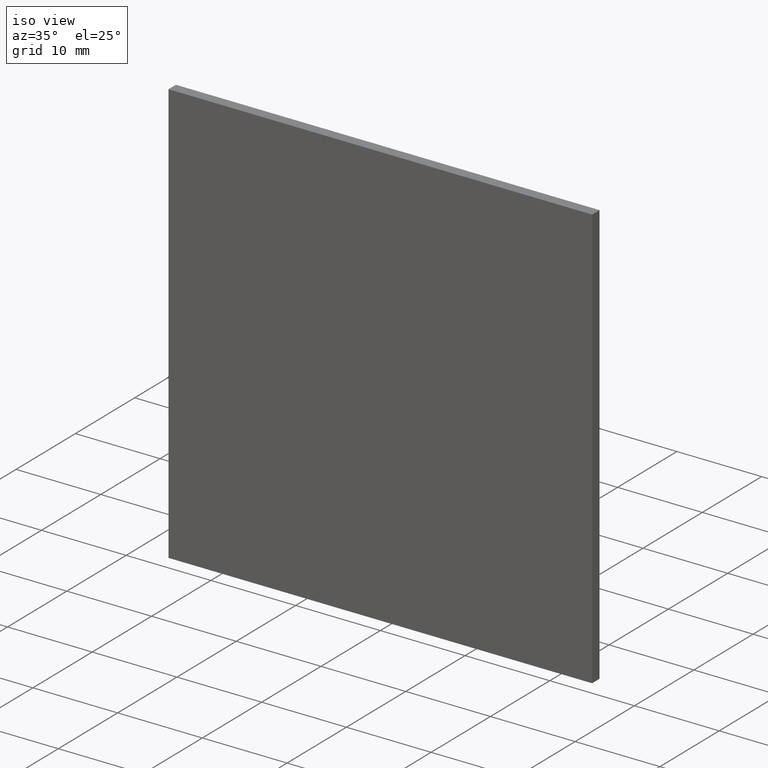
[diagram: clean part render]
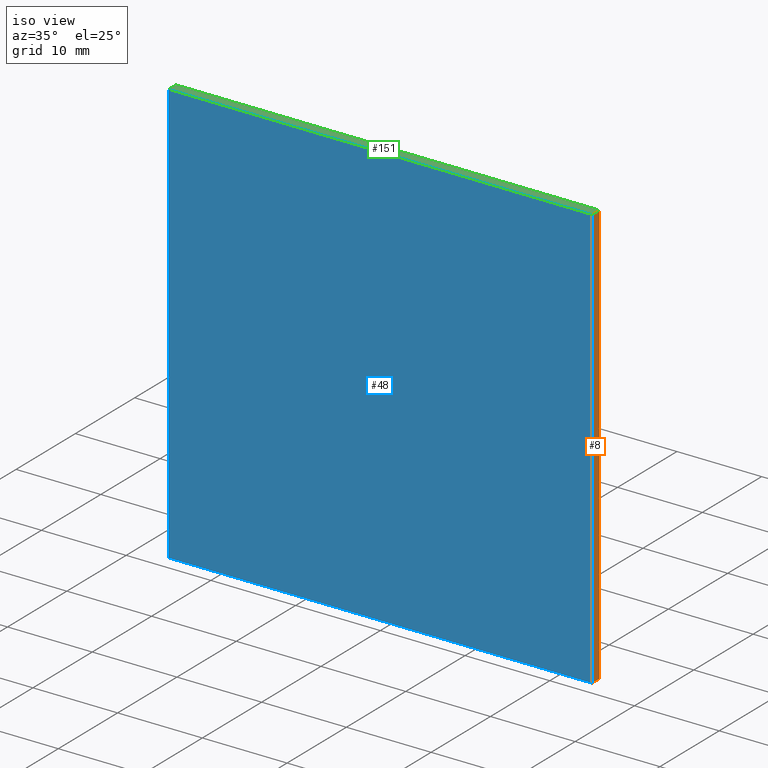
[diagram: same view with three faces highlighted in distinct colors, each labeled with its STEP entity id]
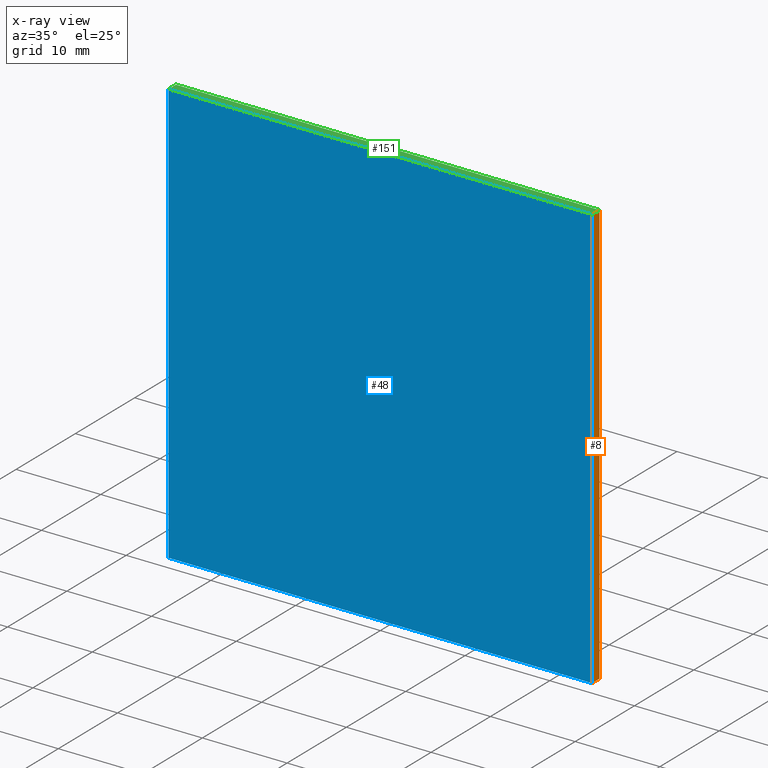
[diagram: x-ray of the same camera — body ghosted, the three highlighted faces saturated]
A machine part, iso view with three faces highlighted in distinct colors.
The next image is the same camera in x-ray (body ghosted, the three faces saturated) — at least one of them is partly hidden behind the body in this view.
Their STEP definitions:

[orange] entity #8 — the highlighted planar face has unit normal (-1, 0, 0).
#2 = VECTOR ( 'NONE', #171, 1000.000000000000000 ) ;
#4 = LINE ( 'NONE', #67, #116 ) ;
#8 = ADVANCED_FACE ( 'NONE', ( #71 ), #172, .F. ) ;
#21 = CARTESIAN_POINT ( 'NONE',  ( 25.00000000000000000, 1.250000000000000000, 25.00000000000000000 ) ) ;
#27 = CARTESIAN_POINT ( 'NONE',  ( 25.00000000000000000, 0.0000000000000000000, -25.00000000000000000 ) ) ;
#32 = DIRECTION ( 'NONE',  ( -0.0000000000000000000, -1.000000000000000000, -0.0000000000000000000 ) ) ;
#34 = LINE ( 'NONE', #173, #47 ) ;
#36 = DIRECTION ( 'NONE',  ( 0.0000000000000000000, 0.0000000000000000000, 1.000000000000000000 ) ) ;
#40 = LINE ( 'NONE', #170, #2 ) ;
#41 = EDGE_LOOP ( 'NONE', ( #156, #73, #147, #60 ) ) ;
#42 = VERTEX_POINT ( 'NONE', #137 ) ;
#43 = LINE ( 'NONE', #111, #77 ) ;
#45 = EDGE_CURVE ( 'NONE', #42, #98, #40, .T. ) ;
#47 = VECTOR ( 'NONE', #54, 1000.000000000000000 ) ;
#54 = DIRECTION ( 'NONE',  ( 0.0000000000000000000, 0.0000000000000000000, -1.000000000000000000 ) ) ;
#60 = ORIENTED_EDGE ( 'NONE', *, *, #186, .T. ) ;
#67 = CARTESIAN_POINT ( 'NONE',  ( 25.00000000000000000, 1.250000000000000000, 25.00000000000000000 ) ) ;
#71 = FACE_OUTER_BOUND ( 'NONE', #41, .T. ) ;
#73 = ORIENTED_EDGE ( 'NONE', *, *, #189, .F. ) ;
#77 = VECTOR ( 'NONE', #32, 1000.000000000000000 ) ;
#89 = DIRECTION ( 'NONE',  ( -0.0000000000000000000, -1.000000000000000000, -0.0000000000000000000 ) ) ;
#95 = EDGE_CURVE ( 'NONE', #108, #135, #34, .T. ) ;
#98 = VERTEX_POINT ( 'NONE', #27 ) ;
#108 = VERTEX_POINT ( 'NONE', #21 ) ;
#111 = CARTESIAN_POINT ( 'NONE',  ( 25.00000000000000000, 1.250000000000000000, -25.00000000000000000 ) ) ;
#116 = VECTOR ( 'NONE', #89, 1000.000000000000000 ) ;
#135 = VERTEX_POINT ( 'NONE', #174 ) ;
#137 = CARTESIAN_POINT ( 'NONE',  ( 25.00000000000000000, 0.0000000000000000000, 25.00000000000000000 ) ) ;
#138 = AXIS2_PLACEMENT_3D ( 'NONE', #145, #199, #36 ) ;
#145 = CARTESIAN_POINT ( 'NONE',  ( 25.00000000000000000, 1.250000000000000000, 25.00000000000000000 ) ) ;
#147 = ORIENTED_EDGE ( 'NONE', *, *, #95, .F. ) ;
#156 = ORIENTED_EDGE ( 'NONE', *, *, #45, .T. ) ;
#170 = CARTESIAN_POINT ( 'NONE',  ( 25.00000000000000000, 0.0000000000000000000, 25.00000000000000000 ) ) ;
#171 = DIRECTION ( 'NONE',  ( 0.0000000000000000000, 0.0000000000000000000, -1.000000000000000000 ) ) ;
#172 = PLANE ( 'NONE',  #138 ) ;
#173 = CARTESIAN_POINT ( 'NONE',  ( 25.00000000000000000, 1.250000000000000000, 25.00000000000000000 ) ) ;
#174 = CARTESIAN_POINT ( 'NONE',  ( 25.00000000000000000, 1.250000000000000000, -25.00000000000000000 ) ) ;
#186 = EDGE_CURVE ( 'NONE', #108, #42, #4, .T. ) ;
#189 = EDGE_CURVE ( 'NONE', #135, #98, #43, .T. ) ;
#199 = DIRECTION ( 'NONE',  ( -1.000000000000000000, 0.0000000000000000000, 0.0000000000000000000 ) ) ;

[blue] entity #48 — the highlighted planar face has unit normal (0, -1, 0).
#2 = VECTOR ( 'NONE', #171, 1000.000000000000000 ) ;
#3 = VECTOR ( 'NONE', #92, 1000.000000000000000 ) ;
#5 = EDGE_CURVE ( 'NONE', #188, #42, #57, .T. ) ;
#16 = EDGE_CURVE ( 'NONE', #163, #188, #79, .T. ) ;
#18 = CARTESIAN_POINT ( 'NONE',  ( 0.0000000000000000000, 0.0000000000000000000, 0.0000000000000000000 ) ) ;
#27 = CARTESIAN_POINT ( 'NONE',  ( 25.00000000000000000, 0.0000000000000000000, -25.00000000000000000 ) ) ;
#30 = CARTESIAN_POINT ( 'NONE',  ( -25.00000000000000000, 0.0000000000000000000, 25.00000000000000000 ) ) ;
#40 = LINE ( 'NONE', #170, #2 ) ;
#42 = VERTEX_POINT ( 'NONE', #137 ) ;
#45 = EDGE_CURVE ( 'NONE', #42, #98, #40, .T. ) ;
#46 = EDGE_LOOP ( 'NONE', ( #142, #200, #115, #117 ) ) ;
#48 = ADVANCED_FACE ( 'NONE', ( #110 ), #139, .T. ) ;
#52 = EDGE_CURVE ( 'NONE', #98, #163, #82, .T. ) ;
#57 = LINE ( 'NONE', #143, #3 ) ;
#68 = CARTESIAN_POINT ( 'NONE',  ( -25.00000000000000000, 0.0000000000000000000, 25.00000000000000000 ) ) ;
#79 = LINE ( 'NONE', #68, #160 ) ;
#82 = LINE ( 'NONE', #102, #190 ) ;
#85 = DIRECTION ( 'NONE',  ( 0.0000000000000000000, -1.000000000000000000, 0.0000000000000000000 ) ) ;
#87 = DIRECTION ( 'NONE',  ( -0.0000000000000000000, -0.0000000000000000000, 1.000000000000000000 ) ) ;
#92 = DIRECTION ( 'NONE',  ( 1.000000000000000000, 0.0000000000000000000, 0.0000000000000000000 ) ) ;
#98 = VERTEX_POINT ( 'NONE', #27 ) ;
#102 = CARTESIAN_POINT ( 'NONE',  ( -25.00000000000000000, 0.0000000000000000000, -25.00000000000000000 ) ) ;
#110 = FACE_OUTER_BOUND ( 'NONE', #46, .T. ) ;
#113 = AXIS2_PLACEMENT_3D ( 'NONE', #18, #85, #161 ) ;
#115 = ORIENTED_EDGE ( 'NONE', *, *, #16, .F. ) ;
#117 = ORIENTED_EDGE ( 'NONE', *, *, #52, .F. ) ;
#120 = DIRECTION ( 'NONE',  ( -1.000000000000000000, -0.0000000000000000000, -0.0000000000000000000 ) ) ;
#121 = CARTESIAN_POINT ( 'NONE',  ( -25.00000000000000000, 0.0000000000000000000, -25.00000000000000000 ) ) ;
#137 = CARTESIAN_POINT ( 'NONE',  ( 25.00000000000000000, 0.0000000000000000000, 25.00000000000000000 ) ) ;
#139 = PLANE ( 'NONE',  #113 ) ;
#142 = ORIENTED_EDGE ( 'NONE', *, *, #45, .F. ) ;
#143 = CARTESIAN_POINT ( 'NONE',  ( -25.00000000000000000, 0.0000000000000000000, 25.00000000000000000 ) ) ;
#160 = VECTOR ( 'NONE', #87, 1000.000000000000000 ) ;
#161 = DIRECTION ( 'NONE',  ( 0.0000000000000000000, -0.0000000000000000000, -1.000000000000000000 ) ) ;
#163 = VERTEX_POINT ( 'NONE', #121 ) ;
#170 = CARTESIAN_POINT ( 'NONE',  ( 25.00000000000000000, 0.0000000000000000000, 25.00000000000000000 ) ) ;
#171 = DIRECTION ( 'NONE',  ( 0.0000000000000000000, 0.0000000000000000000, -1.000000000000000000 ) ) ;
#188 = VERTEX_POINT ( 'NONE', #30 ) ;
#190 = VECTOR ( 'NONE', #120, 1000.000000000000000 ) ;
#200 = ORIENTED_EDGE ( 'NONE', *, *, #5, .F. ) ;

[green] entity #151 — the highlighted planar face has unit normal (0, 0, -1).
#3 = VECTOR ( 'NONE', #92, 1000.000000000000000 ) ;
#4 = LINE ( 'NONE', #67, #116 ) ;
#5 = EDGE_CURVE ( 'NONE', #188, #42, #57, .T. ) ;
#13 = EDGE_LOOP ( 'NONE', ( #152, #66, #130, #122 ) ) ;
#14 = VERTEX_POINT ( 'NONE', #107 ) ;
#17 = LINE ( 'NONE', #201, #136 ) ;
#21 = CARTESIAN_POINT ( 'NONE',  ( 25.00000000000000000, 1.250000000000000000, 25.00000000000000000 ) ) ;
#24 = VECTOR ( 'NONE', #154, 1000.000000000000000 ) ;
#25 = FACE_OUTER_BOUND ( 'NONE', #13, .T. ) ;
#29 = EDGE_CURVE ( 'NONE', #14, #108, #182, .T. ) ;
#30 = CARTESIAN_POINT ( 'NONE',  ( -25.00000000000000000, 0.0000000000000000000, 25.00000000000000000 ) ) ;
#42 = VERTEX_POINT ( 'NONE', #137 ) ;
#53 = DIRECTION ( 'NONE',  ( -0.0000000000000000000, -1.000000000000000000, -0.0000000000000000000 ) ) ;
#56 = PLANE ( 'NONE',  #144 ) ;
#57 = LINE ( 'NONE', #143, #3 ) ;
#66 = ORIENTED_EDGE ( 'NONE', *, *, #186, .F. ) ;
#67 = CARTESIAN_POINT ( 'NONE',  ( 25.00000000000000000, 1.250000000000000000, 25.00000000000000000 ) ) ;
#89 = DIRECTION ( 'NONE',  ( -0.0000000000000000000, -1.000000000000000000, -0.0000000000000000000 ) ) ;
#92 = DIRECTION ( 'NONE',  ( 1.000000000000000000, 0.0000000000000000000, 0.0000000000000000000 ) ) ;
#103 = DIRECTION ( 'NONE',  ( -1.000000000000000000, 0.0000000000000000000, -0.0000000000000000000 ) ) ;
#107 = CARTESIAN_POINT ( 'NONE',  ( -25.00000000000000000, 1.250000000000000000, 25.00000000000000000 ) ) ;
#108 = VERTEX_POINT ( 'NONE', #21 ) ;
#109 = DIRECTION ( 'NONE',  ( 0.0000000000000000000, 0.0000000000000000000, -1.000000000000000000 ) ) ;
#116 = VECTOR ( 'NONE', #89, 1000.000000000000000 ) ;
#118 = CARTESIAN_POINT ( 'NONE',  ( -25.00000000000000000, 1.250000000000000000, 25.00000000000000000 ) ) ;
#122 = ORIENTED_EDGE ( 'NONE', *, *, #197, .T. ) ;
#130 = ORIENTED_EDGE ( 'NONE', *, *, #29, .F. ) ;
#136 = VECTOR ( 'NONE', #53, 1000.000000000000000 ) ;
#137 = CARTESIAN_POINT ( 'NONE',  ( 25.00000000000000000, 0.0000000000000000000, 25.00000000000000000 ) ) ;
#143 = CARTESIAN_POINT ( 'NONE',  ( -25.00000000000000000, 0.0000000000000000000, 25.00000000000000000 ) ) ;
#144 = AXIS2_PLACEMENT_3D ( 'NONE', #118, #109, #103 ) ;
#146 = CARTESIAN_POINT ( 'NONE',  ( -25.00000000000000000, 1.250000000000000000, 25.00000000000000000 ) ) ;
#151 = ADVANCED_FACE ( 'NONE', ( #25 ), #56, .F. ) ;
#152 = ORIENTED_EDGE ( 'NONE', *, *, #5, .T. ) ;
#154 = DIRECTION ( 'NONE',  ( 1.000000000000000000, 0.0000000000000000000, 0.0000000000000000000 ) ) ;
#182 = LINE ( 'NONE', #146, #24 ) ;
#186 = EDGE_CURVE ( 'NONE', #108, #42, #4, .T. ) ;
#188 = VERTEX_POINT ( 'NONE', #30 ) ;
#197 = EDGE_CURVE ( 'NONE', #14, #188, #17, .T. ) ;
#201 = CARTESIAN_POINT ( 'NONE',  ( -25.00000000000000000, 1.250000000000000000, 25.00000000000000000 ) ) ;